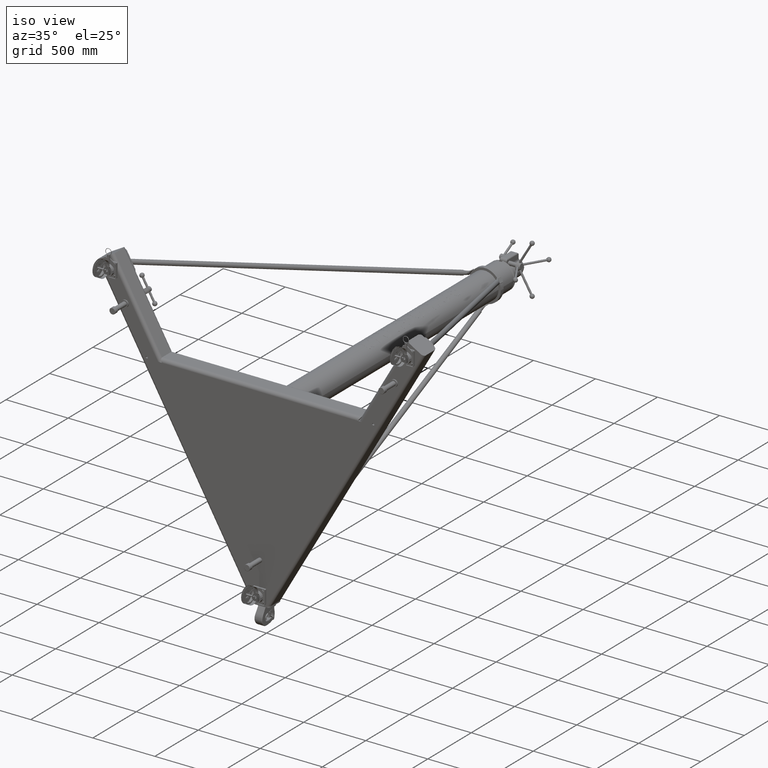
[diagram: clean part render]
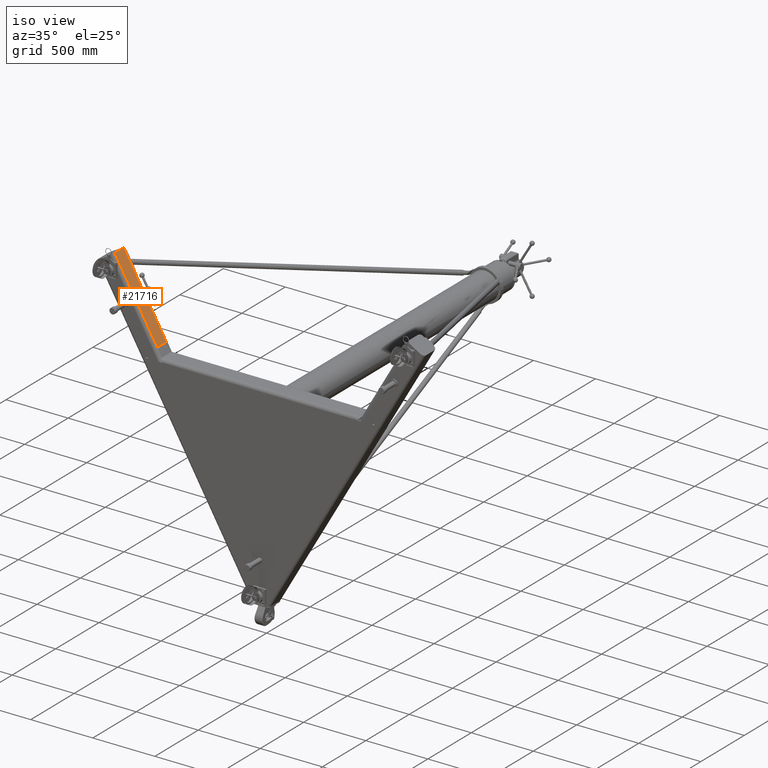
[diagram: same view with one face highlighted and labeled with its STEP entity id]
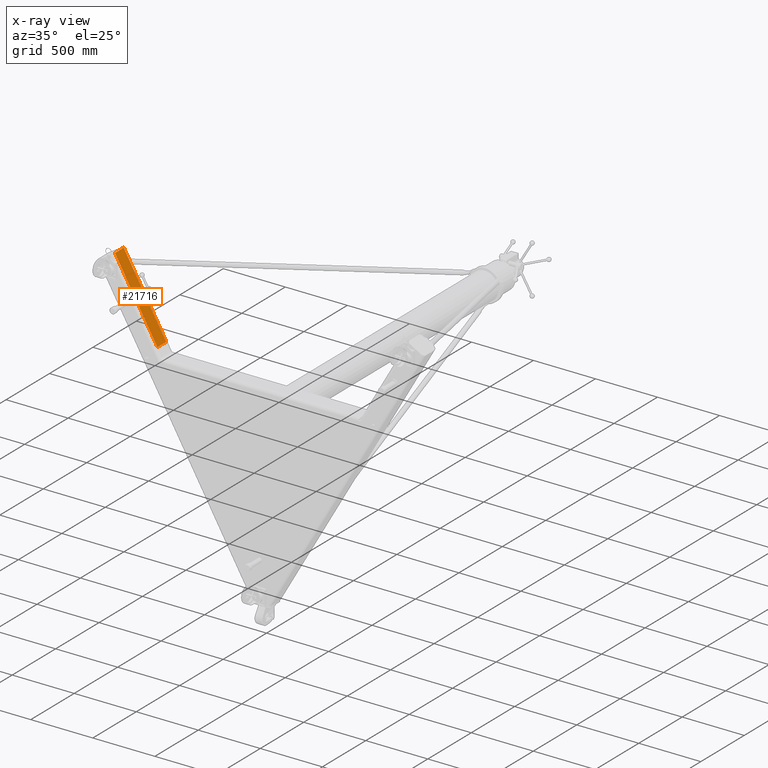
[diagram: x-ray of the same camera — body ghosted, the highlighted face saturated]
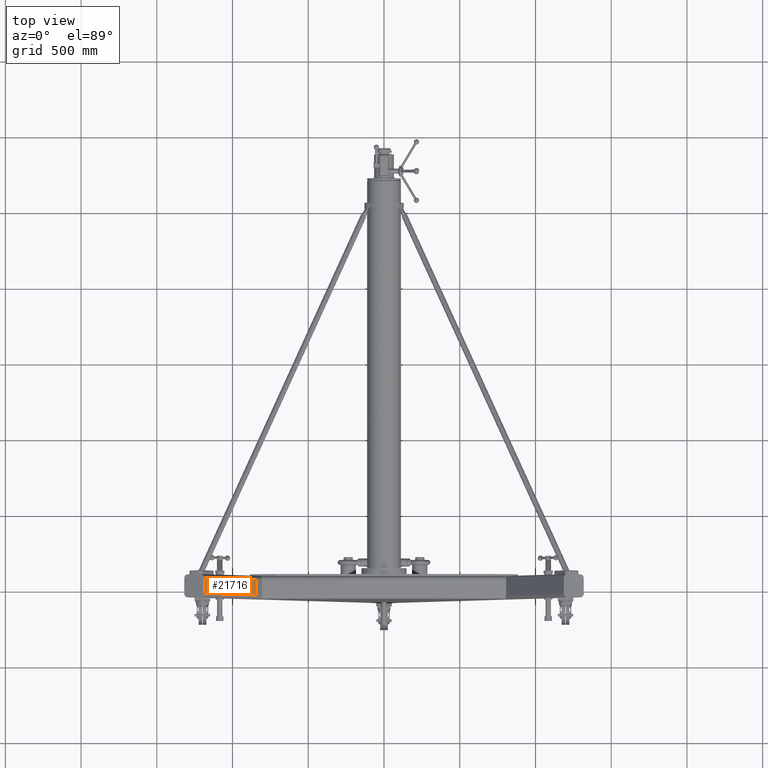
[diagram: same view with one face highlighted and labeled with its STEP entity id]
A machine part, iso view. The second image highlights one B-rep face of the part: STEP entity #21716.
The next image is the same camera in x-ray: the body ghosted, the highlighted face saturated — about 0% of this face is hidden behind the body in this view.
A second angle (top view) of the same face is appended — the face is thin or edge-on in the first view.
In plain terms, the highlighted planar face has unit normal (-0.866, 0, -0.5).
Its self-contained STEP definition (entity closure, byte-faithful):
#1706 = LINE ( 'NONE', #46510, #32125 ) ;
#1981 = DIRECTION ( 'NONE',  ( -0.8660254037844394848, 3.738967856641927380E-16, -0.4999999999999987232 ) ) ;
#5283 = AXIS2_PLACEMENT_3D ( 'NONE', #25460, #1981, #35766 ) ;
#13594 = LINE ( 'NONE', #58407, #77311 ) ;
#18517 = VECTOR ( 'NONE', #87268, 39.37007874015748143 ) ;
#19987 = ORIENTED_EDGE ( 'NONE', *, *, #82093, .F. ) ;
#20459 = CARTESIAN_POINT ( 'NONE',  ( -33.21891108675427517, -2.000000000000504485, 5.544228634059738425 ) ) ;
#21716 = ADVANCED_FACE ( 'Defeatured_151220', ( #79089 ), #101149, .F. ) ;
#25460 = CARTESIAN_POINT ( 'NONE',  ( -46.71891108675423965, 1.999999999999497069, 28.92691453623960740 ) ) ;
#32125 = VECTOR ( 'NONE', #91287, 39.37007874015748143 ) ;
#32400 = ORIENTED_EDGE ( 'NONE', *, *, #111812, .T. ) ;
#34367 = EDGE_CURVE ( 'Defeatured_151212+Defeatured_151220+Defeatured_151219+Defeatured_151215', #133514, #60832, #1706, .T. ) ;
#35766 = DIRECTION ( 'NONE',  ( -3.250103923538402046E-16, -1.000000000000000000, -1.848590587836388356E-16 ) ) ;
#40566 = VERTEX_POINT ( 'NONE', #137137 ) ;
#44724 = ORIENTED_EDGE ( 'NONE', *, *, #111558, .F. ) ;
#46510 = CARTESIAN_POINT ( 'NONE',  ( -46.71891108675423965, 1.999999999999497069, 28.92691453623960740 ) ) ;
#51323 = DIRECTION ( 'NONE',  ( 0.4999999999999986677, -2.412555150607432556E-18, -0.8660254037844393737 ) ) ;
#51654 = ORIENTED_EDGE ( 'NONE', *, *, #34367, .F. ) ;
#53530 = LINE ( 'NONE', #20459, #18517 ) ;
#58407 = CARTESIAN_POINT ( 'NONE',  ( -46.71891108675423965, -2.000000000000502709, 28.92691453623960740 ) ) ;
#60832 = VERTEX_POINT ( 'NONE', #73652 ) ;
#67105 = EDGE_LOOP ( 'NONE', ( #44724, #19987, #51654, #32400 ) ) ;
#73652 = CARTESIAN_POINT ( 'NONE',  ( -46.71891108675423965, 1.999999999999497069, 28.92691453623960740 ) ) ;
#77311 = VECTOR ( 'NONE', #135566, 39.37007874015748854 ) ;
#79089 = FACE_OUTER_BOUND ( 'NONE', #67105, .T. ) ;
#82093 = EDGE_CURVE ( 'Defeatured_151215+Defeatured_151220+Defeatured_151212+Defeatured_15138', #60832, #94197, #96106, .T. ) ;
#87268 = DIRECTION ( 'NONE',  ( -2.397576406525752302E-16, -1.000000000000000000, -5.095574663328524867E-16 ) ) ;
#91287 = DIRECTION ( 'NONE',  ( 3.250103923538402046E-16, 1.000000000000000000, 1.848590587836388356E-16 ) ) ;
#94197 = VERTEX_POINT ( 'NONE', #124161 ) ;
#96106 = LINE ( 'NONE', #143083, #103351 ) ;
#101149 = PLANE ( 'NONE',  #5283 ) ;
#103351 = VECTOR ( 'NONE', #51323, 39.37007874015748854 ) ;
#106442 = CARTESIAN_POINT ( 'NONE',  ( -46.71891108675423965, -2.000000000000502709, 28.92691453623960740 ) ) ;
#111558 = EDGE_CURVE ( 'Defeatured_15133+Defeatured_151220+Defeatured_15138+Defeatured_15134', #94197, #40566, #53530, .T. ) ;
#111812 = EDGE_CURVE ( 'Defeatured_151220+Defeatured_151219+Defeatured_151212+Defeatured_15133', #133514, #40566, #13594, .T. ) ;
#124161 = CARTESIAN_POINT ( 'NONE',  ( -33.21891108675427517, 1.999999999999496181, 5.544228634059741978 ) ) ;
#133514 = VERTEX_POINT ( 'NONE', #106442 ) ;
#135566 = DIRECTION ( 'NONE',  ( 0.4999999999999986677, -2.412555150607432556E-18, -0.8660254037844393737 ) ) ;
#137137 = CARTESIAN_POINT ( 'NONE',  ( -33.21891108675427517, -2.000000000000502709, 5.544228634059740202 ) ) ;
#143083 = CARTESIAN_POINT ( 'NONE',  ( -46.71891108675423965, 1.999999999999497069, 28.92691453623960740 ) ) ;